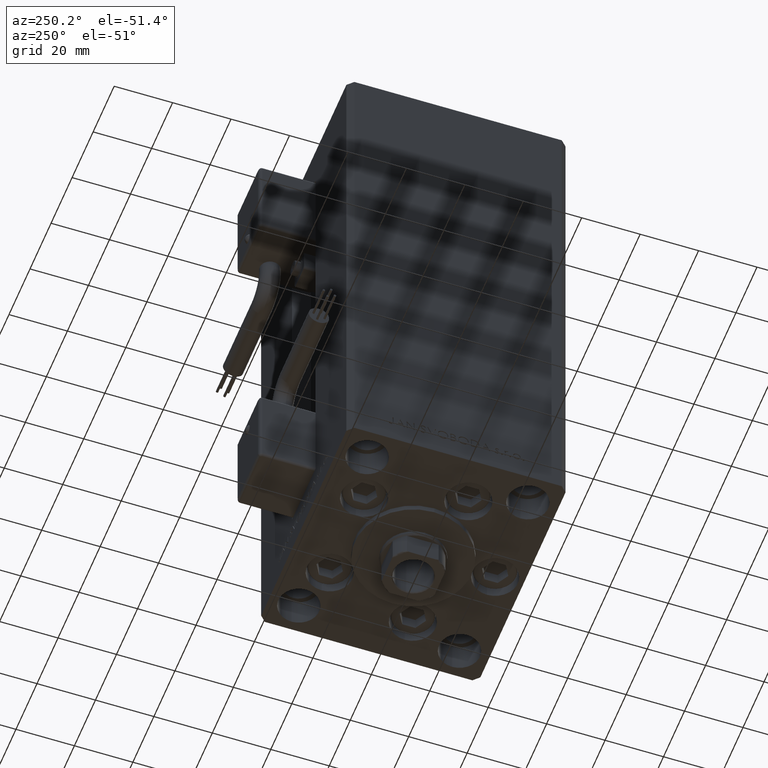
[diagram: clean part render]
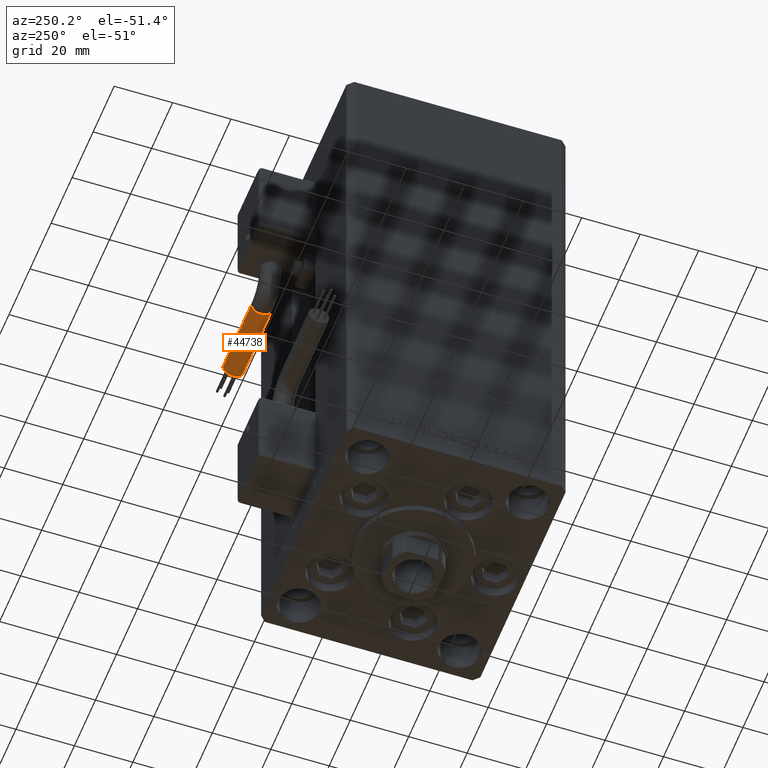
[diagram: same view with one face highlighted and labeled with its STEP entity id]
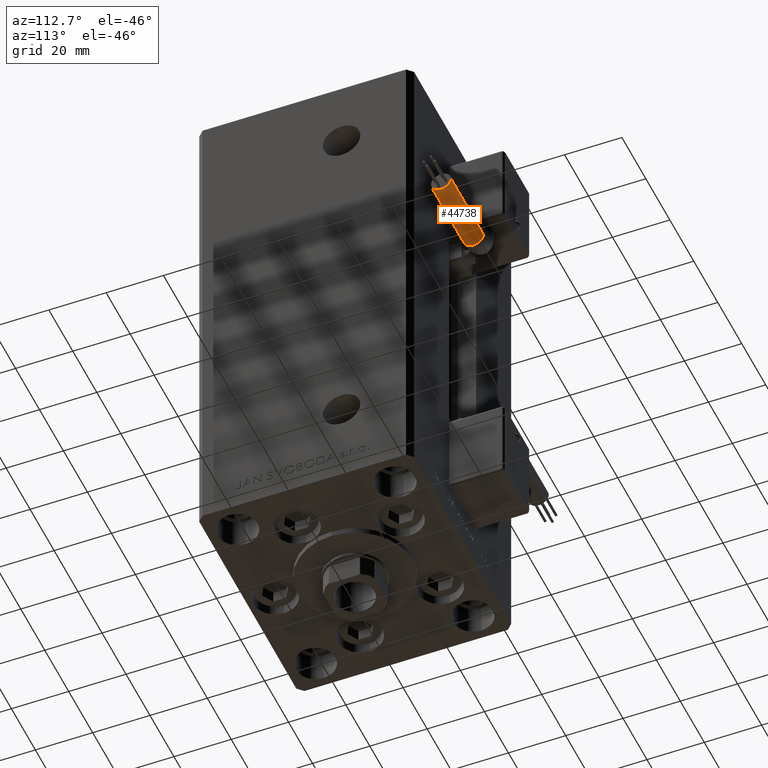
[diagram: same view with one face highlighted and labeled with its STEP entity id]
A machine part, auxiliary view. The second image highlights one B-rep face of the part: STEP entity #44738.
A second angle (auxiliary view) of the same face is appended — the face is thin or edge-on in the first view.
In plain terms, the highlighted cylindrical surface (edge-blend (fillet) strip) has radius 3.5 mm, axis along (1, -0, 0).
Its self-contained STEP definition (entity closure, byte-faithful):
#727 = DIRECTION ( 'NONE',  ( 1.000000000000000000, -2.599999999999999847E-16, 2.220446049250000002E-16 ) ) ;
#985 = VERTEX_POINT ( 'NONE', #44544 ) ;
#1358 = VECTOR ( 'NONE', #36435, 1000.000000000000000 ) ;
#2139 = DIRECTION ( 'NONE',  ( 1.000000000000000000, 0.000000000000000000, 2.220446049250000002E-16 ) ) ;
#3544 = AXIS2_PLACEMENT_3D ( 'NONE', #24777, #727, #32962 ) ;
#4853 = ORIENTED_EDGE ( 'NONE', *, *, #32555, .F. ) ;
#6115 = AXIS2_PLACEMENT_3D ( 'NONE', #49716, #2139, #18003 ) ;
#7165 = CIRCLE ( 'NONE', #41757, 3.500000000000003109 ) ;
#8299 = VERTEX_POINT ( 'NONE', #47211 ) ;
#8520 = VECTOR ( 'NONE', #30901, 1000.000000000000000 ) ;
#10782 = CIRCLE ( 'NONE', #16594, 3.500000000000003109 ) ;
#11158 = CARTESIAN_POINT ( 'NONE',  ( 40.80000000000000426, 42.00000000000000000, -65.00000000000000000 ) ) ;
#11351 = CARTESIAN_POINT ( 'NONE',  ( 13.79999999999999893, 45.50000000000000711, -65.00000000000000000 ) ) ;
#11885 = VERTEX_POINT ( 'NONE', #26776 ) ;
#13608 = CARTESIAN_POINT ( 'NONE',  ( 40.80000000000000426, 38.50000000000000000, -65.00000000000000000 ) ) ;
#14262 = LINE ( 'NONE', #26931, #8520 ) ;
#15958 = EDGE_CURVE ( 'NONE', #11885, #33036, #44078, .T. ) ;
#16594 = AXIS2_PLACEMENT_3D ( 'NONE', #11158, #27264, #39409 ) ;
#18003 = DIRECTION ( 'NONE',  ( 0.000000000000000000, 0.000000000000000000, -1.000000000000000000 ) ) ;
#20949 = DIRECTION ( 'NONE',  ( 0.000000000000000000, 0.000000000000000000, -1.000000000000000000 ) ) ;
#23212 = ORIENTED_EDGE ( 'NONE', *, *, #41508, .T. ) ;
#24777 = CARTESIAN_POINT ( 'NONE',  ( 13.79999999999999893, 42.00000000000000000, -65.00000000000000000 ) ) ;
#25944 = EDGE_CURVE ( 'NONE', #985, #11885, #7165, .T. ) ;
#26776 = CARTESIAN_POINT ( 'NONE',  ( 13.79999999999999893, 42.00000000000000000, -68.50000000000000000 ) ) ;
#26931 = CARTESIAN_POINT ( 'NONE',  ( 13.80000000000000071, 45.50000000000000711, -65.00000000000000000 ) ) ;
#27264 = DIRECTION ( 'NONE',  ( 1.000000000000000000, 0.000000000000000000, 2.220446049250000002E-16 ) ) ;
#28558 = EDGE_CURVE ( 'NONE', #985, #50290, #31954, .T. ) ;
#29000 = CYLINDRICAL_SURFACE ( 'NONE', #3544, 3.500000000000003109 ) ;
#29396 = CARTESIAN_POINT ( 'NONE',  ( 13.79999999999999893, 42.00000000000000000, -65.00000000000000000 ) ) ;
#30548 = ORIENTED_EDGE ( 'NONE', *, *, #28558, .F. ) ;
#30901 = DIRECTION ( 'NONE',  ( 1.000000000000000000, -2.599999999999999847E-16, 2.220446049250000002E-16 ) ) ;
#31031 = ORIENTED_EDGE ( 'NONE', *, *, #25944, .T. ) ;
#31721 = EDGE_LOOP ( 'NONE', ( #31031, #42423, #23212, #4853, #30548 ) ) ;
#31954 = LINE ( 'NONE', #48059, #1358 ) ;
#32555 = EDGE_CURVE ( 'NONE', #50290, #8299, #10782, .T. ) ;
#32962 = DIRECTION ( 'NONE',  ( -4.956352788505158337E-16, -1.000000000000000000, 0.000000000000000000 ) ) ;
#33036 = VERTEX_POINT ( 'NONE', #11351 ) ;
#36435 = DIRECTION ( 'NONE',  ( 1.000000000000000000, -2.599999999999999847E-16, 2.220446049250000002E-16 ) ) ;
#37322 = DIRECTION ( 'NONE',  ( 1.000000000000000000, 0.000000000000000000, 2.220446049250000002E-16 ) ) ;
#39409 = DIRECTION ( 'NONE',  ( 0.000000000000000000, 0.000000000000000000, -1.000000000000000000 ) ) ;
#41147 = FACE_OUTER_BOUND ( 'NONE', #31721, .T. ) ;
#41508 = EDGE_CURVE ( 'NONE', #33036, #8299, #14262, .T. ) ;
#41757 = AXIS2_PLACEMENT_3D ( 'NONE', #29396, #37322, #20949 ) ;
#42423 = ORIENTED_EDGE ( 'NONE', *, *, #15958, .T. ) ;
#44078 = CIRCLE ( 'NONE', #6115, 3.500000000000003109 ) ;
#44544 = CARTESIAN_POINT ( 'NONE',  ( 13.79999999999999893, 38.50000000000000000, -65.00000000000000000 ) ) ;
#44738 = ADVANCED_FACE ( 'NONE', ( #41147 ), #29000, .T. ) ;
#47211 = CARTESIAN_POINT ( 'NONE',  ( 40.80000000000000426, 45.50000000000000711, -65.00000000000000000 ) ) ;
#48059 = CARTESIAN_POINT ( 'NONE',  ( 13.79999999999999716, 38.50000000000000000, -65.00000000000000000 ) ) ;
#49716 = CARTESIAN_POINT ( 'NONE',  ( 13.79999999999999893, 42.00000000000000000, -65.00000000000000000 ) ) ;
#50290 = VERTEX_POINT ( 'NONE', #13608 ) ;